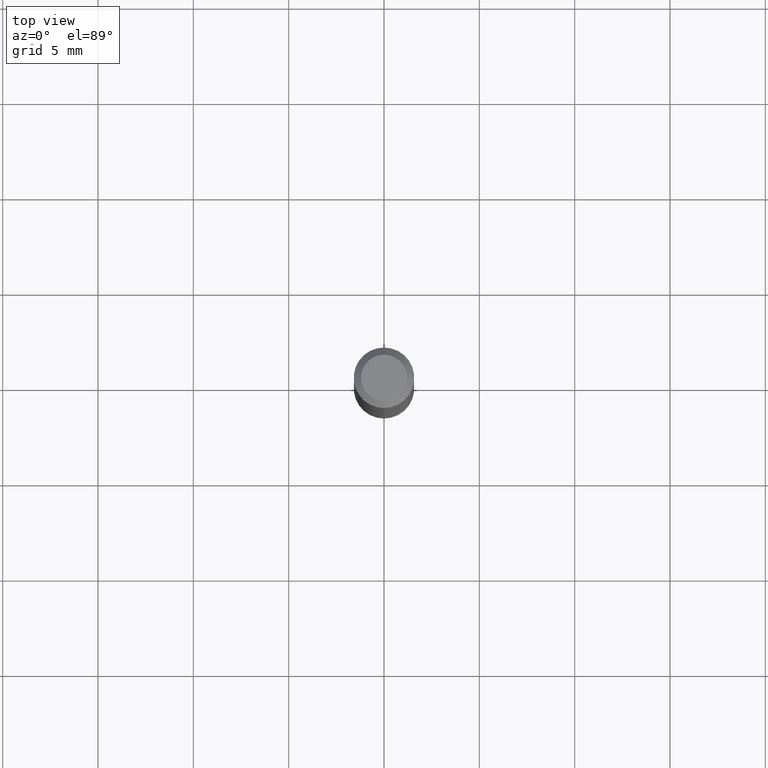
[diagram: clean part render]
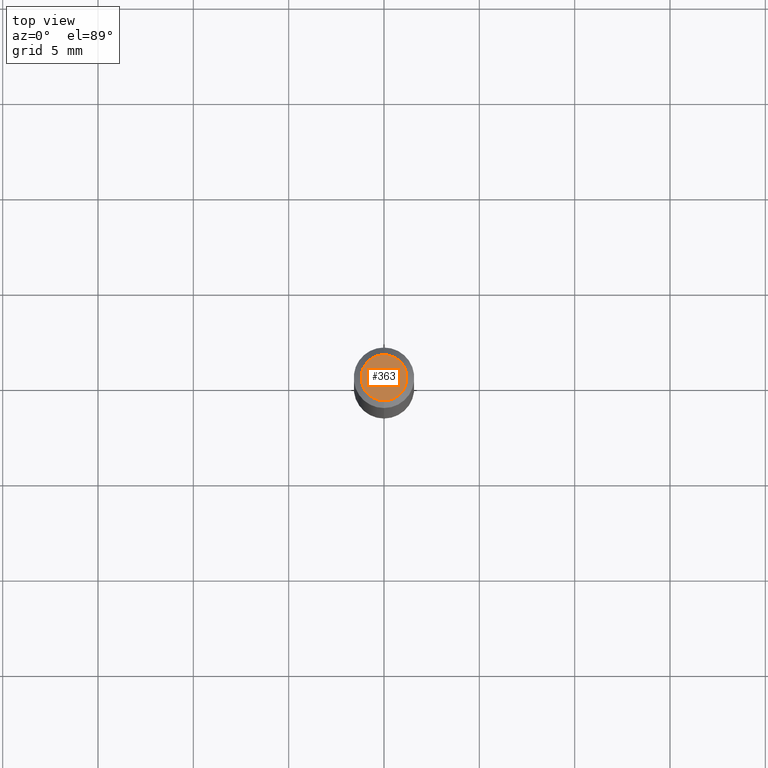
[diagram: same view with one face highlighted and labeled with its STEP entity id]
A machine part, top view. The second image highlights one B-rep face of the part: STEP entity #363.
In plain terms, the highlighted planar face has unit normal (0, -0, -1).
Its self-contained STEP definition (entity closure, byte-faithful):
#11 = CIRCLE ( 'NONE', #485, 0.04749999999999999362 ) ;
#13 = DIRECTION ( 'NONE',  ( 2.445232611711644426E-29, -3.491819582772540483E-15, -1.000000000000000000 ) ) ;
#89 = CARTESIAN_POINT ( 'NONE',  ( 3.840629472727447874E-16, 0.04749999999999999362, -1.747056831868805136E-16 ) ) ;
#104 = DIRECTION ( 'NONE',  ( -6.982962677686266711E-15, -1.000000000000000000, 3.491819582772540483E-15 ) ) ;
#168 = DIRECTION ( 'NONE',  ( -2.445232611711644986E-29, 3.491819582772540088E-15, 1.000000000000000000 ) ) ;
#242 = CIRCLE ( 'NONE', #308, 0.04749999999999999362 ) ;
#283 = ORIENTED_EDGE ( 'NONE', *, *, #385, .T. ) ;
#287 = FACE_OUTER_BOUND ( 'NONE', #312, .T. ) ;
#292 = PLANE ( 'NONE',  #480 ) ;
#308 = AXIS2_PLACEMENT_3D ( 'NONE', #490, #452, #104 ) ;
#312 = EDGE_LOOP ( 'NONE', ( #343, #283 ) ) ;
#330 = DIRECTION ( 'NONE',  ( -6.982962677686266711E-15, -1.000000000000000000, 3.491819582772540483E-15 ) ) ;
#343 = ORIENTED_EDGE ( 'NONE', *, *, #411, .T. ) ;
#352 = VERTEX_POINT ( 'NONE', #89 ) ;
#363 = ADVANCED_FACE ( 'NONE', ( #287 ), #292, .F. ) ;
#364 = CARTESIAN_POINT ( 'NONE',  ( 2.162625587450672198E-46, -3.088253583849936035E-32, -8.844253005184854386E-18 ) ) ;
#385 = EDGE_CURVE ( 'NONE', #503, #352, #11, .T. ) ;
#411 = EDGE_CURVE ( 'NONE', #352, #503, #242, .T. ) ;
#441 = CARTESIAN_POINT ( 'NONE',  ( 3.316907271900976096E-16, 0.04749999999999999362, -1.702835566842880726E-16 ) ) ;
#448 = CARTESIAN_POINT ( 'NONE',  ( -3.773273898774340269E-16, -0.04749999999999999362, 1.570171771765107987E-16 ) ) ;
#452 = DIRECTION ( 'NONE',  ( -2.445232611711644986E-29, 3.491819582772540088E-15, 1.000000000000000000 ) ) ;
#480 = AXIS2_PLACEMENT_3D ( 'NONE', #441, #13, #481 ) ;
#481 = DIRECTION ( 'NONE',  ( 6.982962677686265922E-15, 1.000000000000000000, -3.491819582772540483E-15 ) ) ;
#485 = AXIS2_PLACEMENT_3D ( 'NONE', #364, #168, #330 ) ;
#490 = CARTESIAN_POINT ( 'NONE',  ( 2.162625587450672198E-46, -3.088253583849936035E-32, -8.844253005184854386E-18 ) ) ;
#503 = VERTEX_POINT ( 'NONE', #448 ) ;